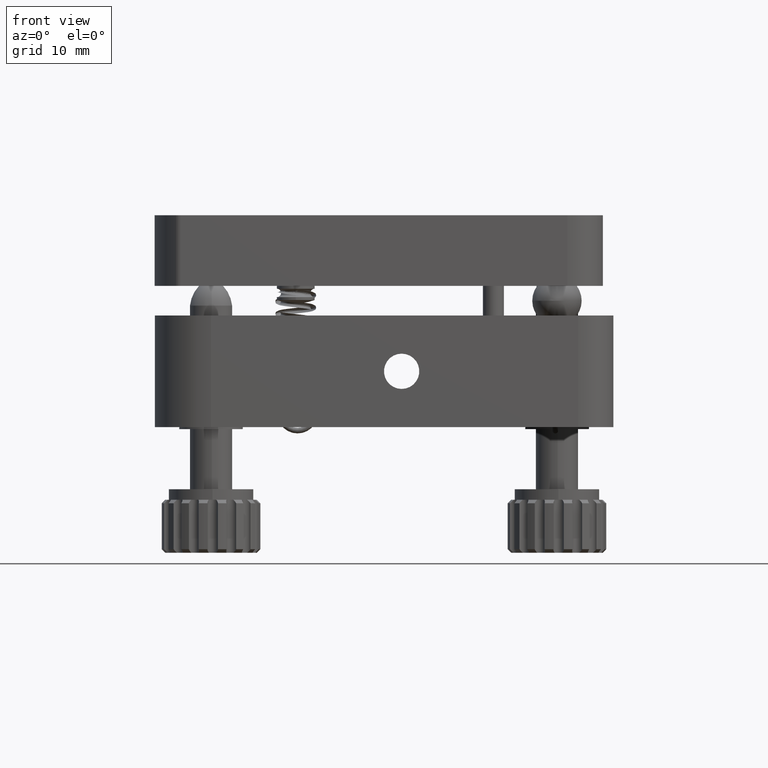
[diagram: clean part render]
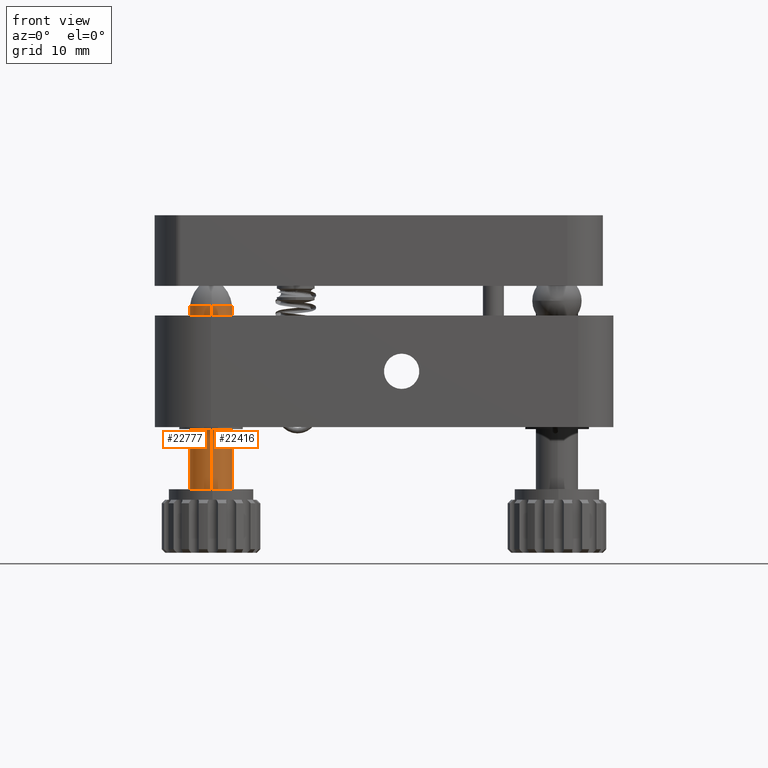
[diagram: same view with one multi-face feature highlighted, each face labeled with its STEP entity id]
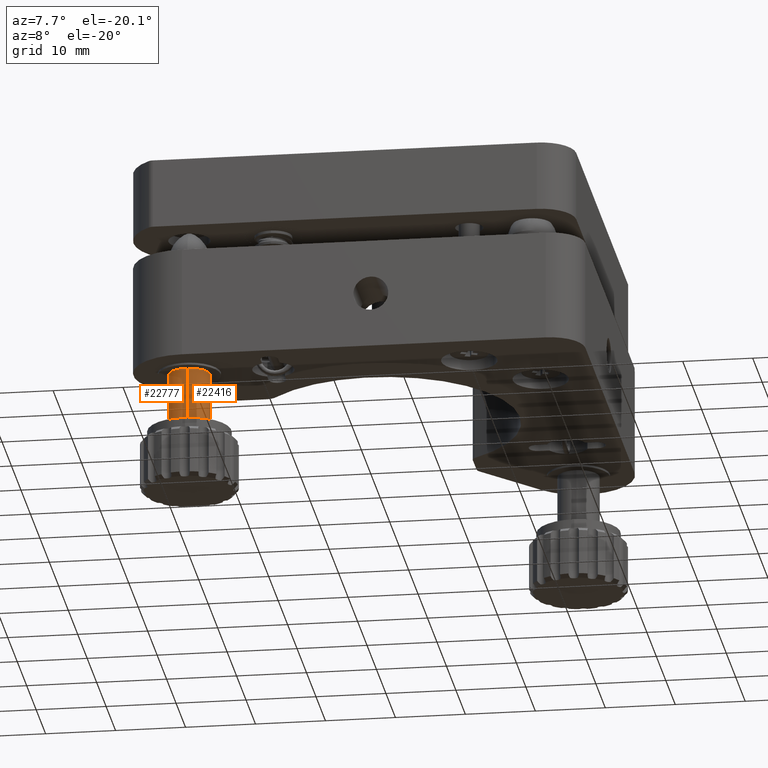
[diagram: same view with one multi-face feature highlighted, each face labeled with its STEP entity id]
A machine part, front view. The highlighted faces form ONE feature: a constant-radius fillet chain: 2 tangent blend faces with common blend radius 3 mm. The faces share edges in the B-rep.
A second angle (auxiliary view) of the same feature is appended — it is thin or edge-on in the first view.
Their STEP definitions:
[1] entity #22777 (Cylinder):
#3895 = CARTESIAN_POINT ( 'NONE',  ( -56.89918516534398000, 5.001694416989273900, -8.799999999999991800 ) ) ;
#4692 = LINE ( 'NONE', #12829, #33852 ) ;
#6520 = VERTEX_POINT ( 'NONE', #20436 ) ;
#7337 = DIRECTION ( 'NONE',  ( -5.551115123125780900E-017, 1.734723475976791700E-018, -1.000000000000000000 ) ) ;
#7799 = EDGE_CURVE ( 'NONE', #6520, #33969, #32763, .T. ) ;
#8910 = CARTESIAN_POINT ( 'NONE',  ( -57.00000000000000000, 7.999999999999992900, 17.20000000000001000 ) ) ;
#11425 = CARTESIAN_POINT ( 'NONE',  ( -57.00000000000000000, 7.999999999999992900, -8.799999999999991800 ) ) ;
#12082 = CARTESIAN_POINT ( 'NONE',  ( -57.00000000000000000, 7.999999999999992900, -17.79999999999999400 ) ) ;
#12829 = CARTESIAN_POINT ( 'NONE',  ( -57.10081483465602800, 10.99830558301071200, -17.79999999999999400 ) ) ;
#14276 = DIRECTION ( 'NONE',  ( 0.03360494488534090200, -0.9994351943369080800, 0.0000000000000000000 ) ) ;
#15014 = EDGE_CURVE ( 'NONE', #33969, #35490, #4692, .T. ) ;
#16684 = LINE ( 'NONE', #27056, #24175 ) ;
#18520 = DIRECTION ( 'NONE',  ( -5.551115123125780900E-017, 1.734723475976791700E-018, -1.000000000000000000 ) ) ;
#18598 = EDGE_LOOP ( 'NONE', ( #36580, #24265, #30512, #29035 ) ) ;
#20056 = FACE_OUTER_BOUND ( 'NONE', #18598, .T. ) ;
#20436 = CARTESIAN_POINT ( 'NONE',  ( -56.89918516534398700, 5.001694416989275600, 17.20000000000001000 ) ) ;
#21473 = VERTEX_POINT ( 'NONE', #3895 ) ;
#22438 = DIRECTION ( 'NONE',  ( -5.551115123125780900E-017, 1.734723475976791700E-018, -1.000000000000000000 ) ) ;
#22777 = ADVANCED_FACE ( 'NONE', ( #20056 ), #24014, .T. ) ;
#24014 = CYLINDRICAL_SURFACE ( 'NONE', #27150, 2.999999999999995100 ) ;
#24175 = VECTOR ( 'NONE', #7337, 1000.000000000000000 ) ;
#24265 = ORIENTED_EDGE ( 'NONE', *, *, #15014, .T. ) ;
#24354 = CARTESIAN_POINT ( 'NONE',  ( -57.10081483465602800, 10.99830558301071200, -8.799999999999991800 ) ) ;
#26286 = DIRECTION ( 'NONE',  ( 0.03360494488534090200, -0.9994351943369080800, 0.0000000000000000000 ) ) ;
#27056 = CARTESIAN_POINT ( 'NONE',  ( -56.89918516534398000, 5.001694416989273900, -17.79999999999999400 ) ) ;
#27150 = AXIS2_PLACEMENT_3D ( 'NONE', #12082, #31842, #26286 ) ;
#27173 = EDGE_CURVE ( 'NONE', #21473, #35490, #29086, .T. ) ;
#29035 = ORIENTED_EDGE ( 'NONE', *, *, #35161, .F. ) ;
#29086 = CIRCLE ( 'NONE', #34190, 2.999999999999995100 ) ;
#30512 = ORIENTED_EDGE ( 'NONE', *, *, #27173, .F. ) ;
#31186 = DIRECTION ( 'NONE',  ( -5.551115123125780900E-017, 1.734723475976791700E-018, -1.000000000000000000 ) ) ;
#31842 = DIRECTION ( 'NONE',  ( -5.551115123125780900E-017, 1.734723475976791700E-018, -1.000000000000000000 ) ) ;
#32721 = CARTESIAN_POINT ( 'NONE',  ( -57.10081483465602800, 10.99830558301071000, 17.20000000000001000 ) ) ;
#32763 = CIRCLE ( 'NONE', #33351, 2.999999999999995100 ) ;
#33351 = AXIS2_PLACEMENT_3D ( 'NONE', #8910, #22438, #35835 ) ;
#33852 = VECTOR ( 'NONE', #18520, 1000.000000000000000 ) ;
#33969 = VERTEX_POINT ( 'NONE', #32721 ) ;
#34190 = AXIS2_PLACEMENT_3D ( 'NONE', #11425, #31186, #14276 ) ;
#35161 = EDGE_CURVE ( 'NONE', #6520, #21473, #16684, .T. ) ;
#35490 = VERTEX_POINT ( 'NONE', #24354 ) ;
#35835 = DIRECTION ( 'NONE',  ( 0.03360494488534090200, -0.9994351943369080800, 0.0000000000000000000 ) ) ;
#36580 = ORIENTED_EDGE ( 'NONE', *, *, #7799, .T. ) ;
[2] entity #22416 (Cylinder):
#1780 = DIRECTION ( 'NONE',  ( 0.03360494488534090200, -0.9994351943369080800, 0.0000000000000000000 ) ) ;
#3895 = CARTESIAN_POINT ( 'NONE',  ( -56.89918516534398000, 5.001694416989273900, -8.799999999999991800 ) ) ;
#4224 = AXIS2_PLACEMENT_3D ( 'NONE', #5758, #25514, #8592 ) ;
#4692 = LINE ( 'NONE', #12829, #33852 ) ;
#5512 = AXIS2_PLACEMENT_3D ( 'NONE', #35611, #18767, #1780 ) ;
#5758 = CARTESIAN_POINT ( 'NONE',  ( -57.00000000000000000, 7.999999999999992900, -8.799999999999991800 ) ) ;
#6520 = VERTEX_POINT ( 'NONE', #20436 ) ;
#7337 = DIRECTION ( 'NONE',  ( -5.551115123125780900E-017, 1.734723475976791700E-018, -1.000000000000000000 ) ) ;
#8444 = ORIENTED_EDGE ( 'NONE', *, *, #15052, .T. ) ;
#8592 = DIRECTION ( 'NONE',  ( 0.03360494488534090200, -0.9994351943369080800, 0.0000000000000000000 ) ) ;
#10531 = DIRECTION ( 'NONE',  ( -5.551115123125780900E-017, 1.734723475976791700E-018, -1.000000000000000000 ) ) ;
#12829 = CARTESIAN_POINT ( 'NONE',  ( -57.10081483465602800, 10.99830558301071200, -17.79999999999999400 ) ) ;
#13296 = EDGE_LOOP ( 'NONE', ( #22429, #8444, #26846, #21774 ) ) ;
#15014 = EDGE_CURVE ( 'NONE', #33969, #35490, #4692, .T. ) ;
#15052 = EDGE_CURVE ( 'NONE', #33969, #6520, #33481, .T. ) ;
#16684 = LINE ( 'NONE', #27056, #24175 ) ;
#18520 = DIRECTION ( 'NONE',  ( -5.551115123125780900E-017, 1.734723475976791700E-018, -1.000000000000000000 ) ) ;
#18767 = DIRECTION ( 'NONE',  ( -5.551115123125780900E-017, 1.734723475976791700E-018, -1.000000000000000000 ) ) ;
#20436 = CARTESIAN_POINT ( 'NONE',  ( -56.89918516534398700, 5.001694416989275600, 17.20000000000001000 ) ) ;
#21473 = VERTEX_POINT ( 'NONE', #3895 ) ;
#21774 = ORIENTED_EDGE ( 'NONE', *, *, #28986, .F. ) ;
#21893 = CYLINDRICAL_SURFACE ( 'NONE', #30477, 2.999999999999995100 ) ;
#22416 = ADVANCED_FACE ( 'NONE', ( #32869 ), #21893, .T. ) ;
#22429 = ORIENTED_EDGE ( 'NONE', *, *, #15014, .F. ) ;
#24175 = VECTOR ( 'NONE', #7337, 1000.000000000000000 ) ;
#24354 = CARTESIAN_POINT ( 'NONE',  ( -57.10081483465602800, 10.99830558301071200, -8.799999999999991800 ) ) ;
#25514 = DIRECTION ( 'NONE',  ( -5.551115123125780900E-017, 1.734723475976791700E-018, -1.000000000000000000 ) ) ;
#26846 = ORIENTED_EDGE ( 'NONE', *, *, #35161, .T. ) ;
#27056 = CARTESIAN_POINT ( 'NONE',  ( -56.89918516534398000, 5.001694416989273900, -17.79999999999999400 ) ) ;
#27068 = CIRCLE ( 'NONE', #4224, 2.999999999999995100 ) ;
#27326 = CARTESIAN_POINT ( 'NONE',  ( -57.00000000000000000, 7.999999999999992900, -17.79999999999999400 ) ) ;
#27570 = DIRECTION ( 'NONE',  ( 0.03360494488534090200, -0.9994351943369080800, 0.0000000000000000000 ) ) ;
#28986 = EDGE_CURVE ( 'NONE', #35490, #21473, #27068, .T. ) ;
#30477 = AXIS2_PLACEMENT_3D ( 'NONE', #27326, #10531, #27570 ) ;
#32721 = CARTESIAN_POINT ( 'NONE',  ( -57.10081483465602800, 10.99830558301071000, 17.20000000000001000 ) ) ;
#32869 = FACE_OUTER_BOUND ( 'NONE', #13296, .T. ) ;
#33481 = CIRCLE ( 'NONE', #5512, 2.999999999999995100 ) ;
#33852 = VECTOR ( 'NONE', #18520, 1000.000000000000000 ) ;
#33969 = VERTEX_POINT ( 'NONE', #32721 ) ;
#35161 = EDGE_CURVE ( 'NONE', #6520, #21473, #16684, .T. ) ;
#35490 = VERTEX_POINT ( 'NONE', #24354 ) ;
#35611 = CARTESIAN_POINT ( 'NONE',  ( -57.00000000000000000, 7.999999999999992900, 17.20000000000001000 ) ) ;